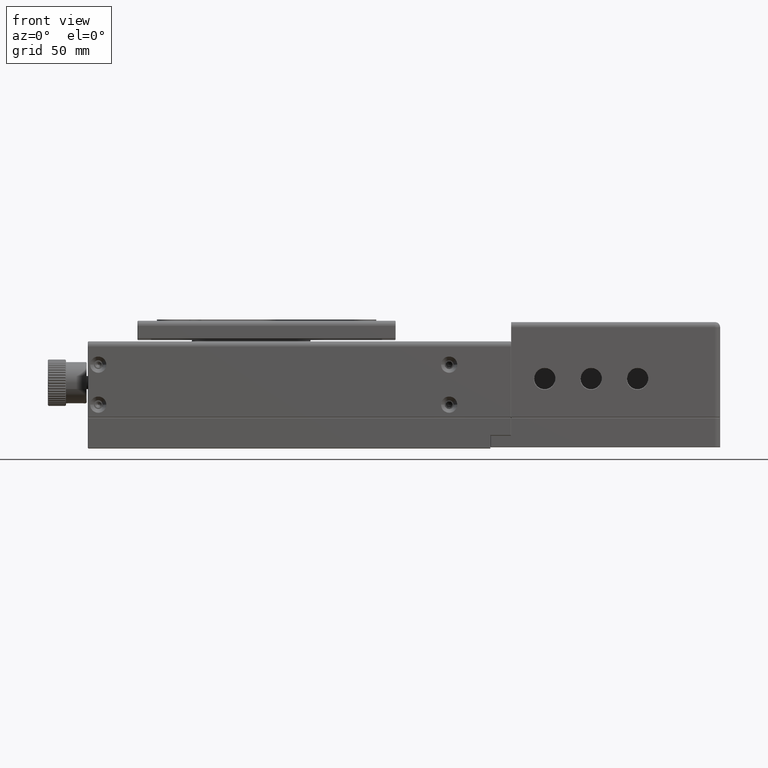
[diagram: clean part render]
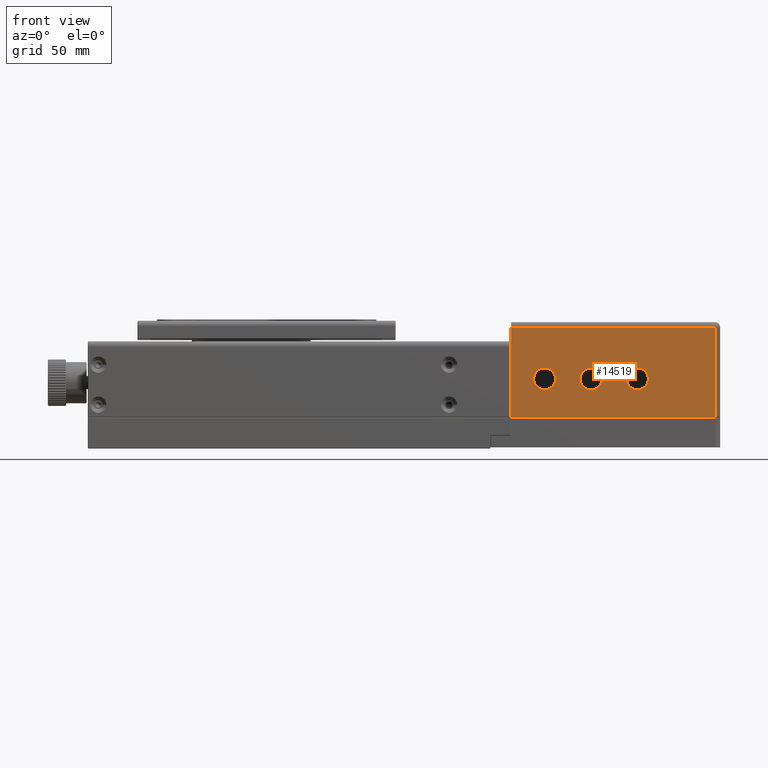
[diagram: same view with one face highlighted and labeled with its STEP entity id]
A machine part, front view. The second image highlights one B-rep face of the part: STEP entity #14519.
In plain terms, the highlighted planar face has unit normal (0, 1, 0).
Its self-contained STEP definition (entity closure, byte-faithful):
#1983 = LINE ( 'NONE', #62369, #56115 ) ;
#2002 = CARTESIAN_POINT ( 'NONE',  ( 74.03920879970979740, -40.00575141257549916, 7.200000000000000178 ) ) ;
#3879 = DIRECTION ( 'NONE',  ( -1.000000000000000000, 8.007088936040699777E-17, -1.026095422780651895E-16 ) ) ;
#5966 = CIRCLE ( 'NONE', #69146, 4.250000000000072831 ) ;
#6228 = EDGE_CURVE ( 'NONE', #34518, #23297, #5966, .T. ) ;
#6361 = EDGE_LOOP ( 'NONE', ( #43254, #62153, #70640, #56734 ) ) ;
#6393 = VECTOR ( 'NONE', #13711, 1000.000000000000000 ) ;
#6747 = DIRECTION ( 'NONE',  ( -1.026095422780651895E-16, 0.000000000000000000, 1.000000000000000000 ) ) ;
#7033 = CARTESIAN_POINT ( 'NONE',  ( 8.039208799709820497, -40.00575141257549916, 22.00000000000000000 ) ) ;
#7334 = EDGE_CURVE ( 'NONE', #43672, #9169, #48167, .T. ) ;
#8360 = EDGE_CURVE ( 'NONE', #19342, #56546, #63197, .T. ) ;
#9169 = VERTEX_POINT ( 'NONE', #46074 ) ;
#10783 = VECTOR ( 'NONE', #3879, 1000.000000000000000 ) ;
#10939 = AXIS2_PLACEMENT_3D ( 'NONE', #7033, #44475, #32426 ) ;
#12086 = FACE_BOUND ( 'NONE', #71052, .T. ) ;
#13711 = DIRECTION ( 'NONE',  ( 1.000000000000000000, -8.007088936040699777E-17, 1.026095422780651895E-16 ) ) ;
#13765 = VERTEX_POINT ( 'NONE', #28746 ) ;
#14519 = ADVANCED_FACE ( 'NONE', ( #12086, #23809, #67709, #51231 ), #39160, .F. ) ;
#15219 = CARTESIAN_POINT ( 'NONE',  ( 76.03920879970979740, -40.00575141257549916, 42.00000000000000000 ) ) ;
#15607 = ORIENTED_EDGE ( 'NONE', *, *, #8360, .T. ) ;
#16862 = VERTEX_POINT ( 'NONE', #45521 ) ;
#17143 = CIRCLE ( 'NONE', #54534, 4.250000000000072831 ) ;
#18010 = DIRECTION ( 'NONE',  ( 1.000000000000000000, 0.000000000000000000, 0.000000000000000000 ) ) ;
#18856 = LINE ( 'NONE', #2002, #6393 ) ;
#19342 = VERTEX_POINT ( 'NONE', #46274 ) ;
#20542 = DIRECTION ( 'NONE',  ( -1.026095422780651895E-16, 0.000000000000000000, 1.000000000000000000 ) ) ;
#21544 = ORIENTED_EDGE ( 'NONE', *, *, #6228, .T. ) ;
#23151 = CARTESIAN_POINT ( 'NONE',  ( 8.039208799709820497, -40.00575141257549916, 22.00000000000000000 ) ) ;
#23297 = VERTEX_POINT ( 'NONE', #42921 ) ;
#23516 = DIRECTION ( 'NONE',  ( 1.000000000000000000, 0.000000000000000000, 0.000000000000000000 ) ) ;
#23809 = FACE_BOUND ( 'NONE', #43058, .T. ) ;
#24443 = DIRECTION ( 'NONE',  ( 0.000000000000000000, 1.000000000000000000, 3.534994002795199995E-32 ) ) ;
#24816 = DIRECTION ( 'NONE',  ( 1.000000000000000000, 0.000000000000000000, 0.000000000000000000 ) ) ;
#24833 = CIRCLE ( 'NONE', #65691, 4.250000000000000000 ) ;
#27281 = CARTESIAN_POINT ( 'NONE',  ( 74.03920879970979740, -40.00575141257549916, 7.200000000000000178 ) ) ;
#27718 = DIRECTION ( 'NONE',  ( 1.000000000000000000, 0.000000000000000000, 0.000000000000000000 ) ) ;
#28746 = CARTESIAN_POINT ( 'NONE',  ( -4.960791200290180392, -40.00575141257549916, 7.200000000000000178 ) ) ;
#30136 = EDGE_CURVE ( 'NONE', #56546, #19342, #24833, .T. ) ;
#32426 = DIRECTION ( 'NONE',  ( 1.000000000000000000, 0.000000000000000000, 0.000000000000000000 ) ) ;
#32900 = EDGE_CURVE ( 'NONE', #69527, #43672, #1983, .T. ) ;
#33182 = DIRECTION ( 'NONE',  ( 0.000000000000000000, 1.000000000000000000, 3.534994002795199995E-32 ) ) ;
#33682 = DIRECTION ( 'NONE',  ( 1.000000000000000000, -8.007088936040699777E-17, 0.000000000000000000 ) ) ;
#34406 = CARTESIAN_POINT ( 'NONE',  ( 76.03920879970979740, -40.00575141257549916, 7.000000000000000000 ) ) ;
#34518 = VERTEX_POINT ( 'NONE', #71834 ) ;
#35331 = VECTOR ( 'NONE', #20542, 1000.000000000000000 ) ;
#37831 = CIRCLE ( 'NONE', #68266, 4.250000000000074607 ) ;
#37853 = DIRECTION ( 'NONE',  ( 1.000000000000000000, 0.000000000000000000, 0.000000000000000000 ) ) ;
#38216 = CARTESIAN_POINT ( 'NONE',  ( 44.03920879970984714, -40.00575141257549916, 22.00000000000000000 ) ) ;
#39160 = PLANE ( 'NONE',  #69501 ) ;
#39577 = CARTESIAN_POINT ( 'NONE',  ( 44.03920879970984714, -40.00575141257549916, 22.00000000000000000 ) ) ;
#42835 = LINE ( 'NONE', #48682, #35331 ) ;
#42921 = CARTESIAN_POINT ( 'NONE',  ( 44.03920879970984714, -40.00575141257549916, 26.25000000000000000 ) ) ;
#42982 = DIRECTION ( 'NONE',  ( 0.000000000000000000, 1.000000000000000000, 3.534994002795199995E-32 ) ) ;
#43058 = EDGE_LOOP ( 'NONE', ( #62632, #56090 ) ) ;
#43113 = CARTESIAN_POINT ( 'NONE',  ( 8.039208799709820497, -40.00575141257549916, 26.25000000000000000 ) ) ;
#43254 = ORIENTED_EDGE ( 'NONE', *, *, #61048, .F. ) ;
#43672 = VERTEX_POINT ( 'NONE', #67135 ) ;
#44475 = DIRECTION ( 'NONE',  ( 0.000000000000000000, 1.000000000000000000, 3.534994002795199995E-32 ) ) ;
#44593 = ORIENTED_EDGE ( 'NONE', *, *, #30136, .T. ) ;
#45521 = CARTESIAN_POINT ( 'NONE',  ( 8.039208799709820497, -40.00575141257549916, 17.75000000000000000 ) ) ;
#46074 = CARTESIAN_POINT ( 'NONE',  ( -4.960791200290180392, -40.00575141257549916, 42.00000000000000000 ) ) ;
#46106 = DIRECTION ( 'NONE',  ( 8.007088936040699777E-17, 1.000000000000000000, 2.395799238961640000E-32 ) ) ;
#46274 = CARTESIAN_POINT ( 'NONE',  ( 26.03920879970980096, -40.00575141257549916, 26.25000000000000000 ) ) ;
#47040 = ORIENTED_EDGE ( 'NONE', *, *, #52274, .T. ) ;
#48167 = LINE ( 'NONE', #15219, #10783 ) ;
#48205 = EDGE_CURVE ( 'NONE', #50028, #16862, #37831, .T. ) ;
#48682 = CARTESIAN_POINT ( 'NONE',  ( -4.960791200290180392, -40.00575141257549916, 7.000000000000000000 ) ) ;
#48976 = EDGE_CURVE ( 'NONE', #13765, #69527, #18856, .T. ) ;
#50028 = VERTEX_POINT ( 'NONE', #43113 ) ;
#50647 = CIRCLE ( 'NONE', #10939, 4.250000000000074607 ) ;
#51231 = FACE_OUTER_BOUND ( 'NONE', #6361, .T. ) ;
#51483 = AXIS2_PLACEMENT_3D ( 'NONE', #69073, #24443, #24816 ) ;
#52274 = EDGE_CURVE ( 'NONE', #23297, #34518, #17143, .T. ) ;
#54534 = AXIS2_PLACEMENT_3D ( 'NONE', #38216, #42982, #37853 ) ;
#56090 = ORIENTED_EDGE ( 'NONE', *, *, #48205, .T. ) ;
#56115 = VECTOR ( 'NONE', #6747, 1000.000000000000000 ) ;
#56546 = VERTEX_POINT ( 'NONE', #63900 ) ;
#56734 = ORIENTED_EDGE ( 'NONE', *, *, #7334, .T. ) ;
#56794 = DIRECTION ( 'NONE',  ( 0.000000000000000000, 1.000000000000000000, 3.534994002795199995E-32 ) ) ;
#61048 = EDGE_CURVE ( 'NONE', #13765, #9169, #42835, .T. ) ;
#62153 = ORIENTED_EDGE ( 'NONE', *, *, #48976, .T. ) ;
#62369 = CARTESIAN_POINT ( 'NONE',  ( 74.03920879970979740, -40.00575141257549916, 7.000000000000000000 ) ) ;
#62632 = ORIENTED_EDGE ( 'NONE', *, *, #68919, .T. ) ;
#63008 = DIRECTION ( 'NONE',  ( 0.000000000000000000, 1.000000000000000000, 3.534994002795199995E-32 ) ) ;
#63197 = CIRCLE ( 'NONE', #51483, 4.250000000000000000 ) ;
#63900 = CARTESIAN_POINT ( 'NONE',  ( 26.03920879970980096, -40.00575141257549916, 17.75000000000000000 ) ) ;
#65691 = AXIS2_PLACEMENT_3D ( 'NONE', #66474, #33182, #27718 ) ;
#66474 = CARTESIAN_POINT ( 'NONE',  ( 26.03920879970980096, -40.00575141257549916, 22.00000000000000000 ) ) ;
#67135 = CARTESIAN_POINT ( 'NONE',  ( 74.03920879970979740, -40.00575141257549916, 42.00000000000000000 ) ) ;
#67709 = FACE_BOUND ( 'NONE', #71383, .T. ) ;
#68266 = AXIS2_PLACEMENT_3D ( 'NONE', #23151, #63008, #23516 ) ;
#68919 = EDGE_CURVE ( 'NONE', #16862, #50028, #50647, .T. ) ;
#69073 = CARTESIAN_POINT ( 'NONE',  ( 26.03920879970980096, -40.00575141257549916, 22.00000000000000000 ) ) ;
#69146 = AXIS2_PLACEMENT_3D ( 'NONE', #39577, #56794, #18010 ) ;
#69501 = AXIS2_PLACEMENT_3D ( 'NONE', #34406, #46106, #33682 ) ;
#69527 = VERTEX_POINT ( 'NONE', #27281 ) ;
#70640 = ORIENTED_EDGE ( 'NONE', *, *, #32900, .T. ) ;
#71052 = EDGE_LOOP ( 'NONE', ( #44593, #15607 ) ) ;
#71383 = EDGE_LOOP ( 'NONE', ( #21544, #47040 ) ) ;
#71834 = CARTESIAN_POINT ( 'NONE',  ( 44.03920879970984714, -40.00575141257549916, 17.75000000000000000 ) ) ;